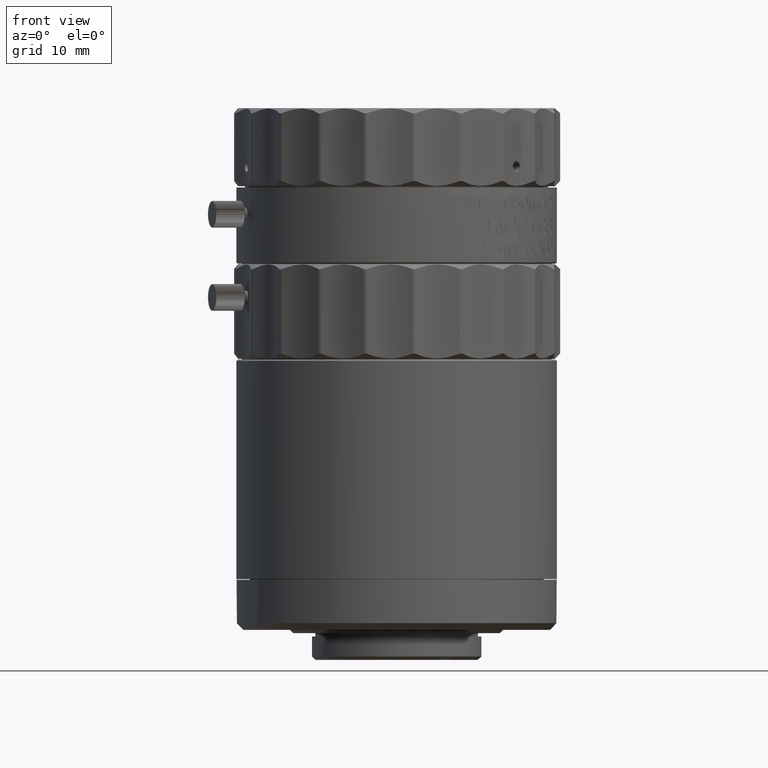
[diagram: clean part render]
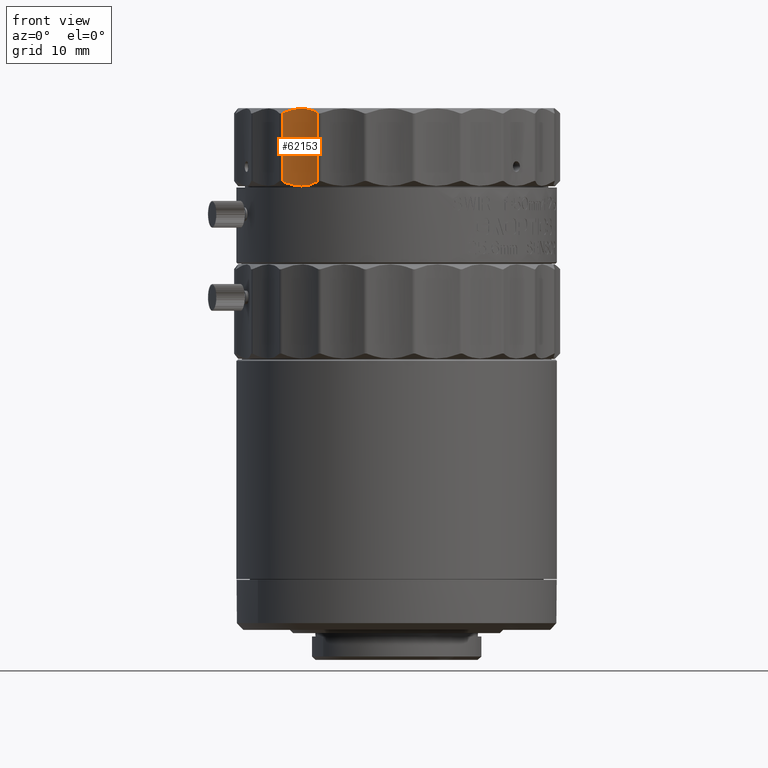
[diagram: same view with one face highlighted and labeled with its STEP entity id]
A machine part, front view. The second image highlights one B-rep face of the part: STEP entity #62153.
In plain terms, the highlighted cylindrical surface (partial cylindrical patch) has radius 12 mm, axis along (0, 0, -1).
Its self-contained STEP definition (entity closure, byte-faithful):
#778 = EDGE_CURVE ( 'NONE', #52822, #87277, #22049, .T. ) ;
#3986 = CARTESIAN_POINT ( 'NONE',  ( 10.85589953866780100, 130.8712827436203554, 11.72033998260007692 ) ) ;
#4477 = B_SPLINE_CURVE_WITH_KNOTS ( 'NONE', 3,
 ( #72812, #57101, #14555, #64428, #48721, #81738, #82832, #13448, #46533, #37593, #71736, #80655, #12912, #3986, #73363, #21882, #98530, #90144 ),
 .UNSPECIFIED., .F., .F.,
 ( 4, 2, 2, 2, 2, 2, 2, 2, 4 ),
 ( 0.000000000000000000, 0.1249999999999951705, 0.1874999999999928668, 0.2499999999999905631, 0.4999999999999748534, 0.6249999999999708011, 0.6874999999999727995, 0.7499999999999747979, 1.000000000000000000 ),
 .UNSPECIFIED. ) ;
#6657 = CARTESIAN_POINT ( 'NONE',  ( 11.25318383352952623, 130.4791059473226937, 0.4745354709357253453 ) ) ;
#6744 = B_SPLINE_CURVE_WITH_KNOTS ( 'NONE', 3,
 ( #74963, #108472, #41381, #66590, #49770, #6657, #75526, #40270, #74406, #110123, #101774, #25138, #23498, #100685, #107928, #109029, #91197, #92844 ),
 .UNSPECIFIED., .F., .F.,
 ( 4, 2, 2, 2, 2, 2, 2, 2, 4 ),
 ( 0.000000000000000000, 0.1249999999999944211, 0.1874999999999916178, 0.2499999999999888423, 0.4999999999999927836, 0.6249999999999944489, 0.6874999999999953371, 0.7499999999999960032, 1.000000000000000000 ),
 .UNSPECIFIED. ) ;
#12912 = CARTESIAN_POINT ( 'NONE',  ( 10.65148040333285628, 131.0601573061279055, 11.76385411074193676 ) ) ;
#13448 = CARTESIAN_POINT ( 'NONE',  ( 8.900104983703039707, 132.3812608486865372, 11.78197888949990180 ) ) ;
#14418 = B_SPLINE_CURVE_WITH_KNOTS ( 'NONE', 3,
 ( #18319, #44059, #78767, #27831 ),
 .UNSPECIFIED., .F., .F.,
 ( 4, 4 ),
 ( 0.000000000000000000, 1.000000000000000000 ),
 .UNSPECIFIED. ) ;
#14555 = CARTESIAN_POINT ( 'NONE',  ( 7.421253827728339303, 133.1422010511689678, 11.37307826412433620 ) ) ;
#18319 = CARTESIAN_POINT ( 'NONE',  ( 12.14635171946665970, 129.4455741795787844, 11.16933738949530053 ) ) ;
#20670 = FACE_OUTER_BOUND ( 'NONE', #103343, .T. ) ;
#21882 = CARTESIAN_POINT ( 'NONE',  ( 11.45332290295791111, 130.2846567679672205, 11.55136217950585298 ) ) ;
#22049 = B_SPLINE_CURVE_WITH_KNOTS ( 'NONE', 3,
 ( #80185, #108032, #46073, #29810 ),
 .UNSPECIFIED., .F., .F.,
 ( 4, 4 ),
 ( 0.000000000000000000, 1.000000000000000000 ),
 .UNSPECIFIED. ) ;
#22660 = ORIENTED_EDGE ( 'NONE', *, *, #778, .F. ) ;
#23123 = AXIS2_PLACEMENT_3D ( 'NONE', #87846, #54796, #62125 ) ;
#23498 = CARTESIAN_POINT ( 'NONE',  ( 8.890595650705249042, 132.3733634514769619, 0.3161458893335047371 ) ) ;
#25138 = CARTESIAN_POINT ( 'NONE',  ( 9.008421733130449027, 132.3006916984763564, 0.2980151446528672143 ) ) ;
#26648 = CARTESIAN_POINT ( 'NONE',  ( 12.14635171946665970, 129.4455741795787844, 11.16933738949530053 ) ) ;
#27831 = CARTESIAN_POINT ( 'NONE',  ( 12.14635171946824066, 129.4455741795765960, 0.9106626104832049595 ) ) ;
#29270 = CARTESIAN_POINT ( 'NONE',  ( 6.916721446607659196, 133.3456491858921993, 0.9106626104703609004 ) ) ;
#29810 = CARTESIAN_POINT ( 'NONE',  ( 6.916721446613509627, 133.3456491858899824, 11.16933738951147959 ) ) ;
#33000 = ORIENTED_EDGE ( 'NONE', *, *, #42800, .F. ) ;
#36487 = EDGE_CURVE ( 'NONE', #109115, #52822, #6744, .T. ) ;
#37593 = CARTESIAN_POINT ( 'NONE',  ( 10.02119930707376305, 131.5940892565542129, 11.84000170444184796 ) ) ;
#37745 = CARTESIAN_POINT ( 'NONE',  ( 12.14635171946824066, 129.4455741795765960, 0.9106626104832049595 ) ) ;
#40270 = CARTESIAN_POINT ( 'NONE',  ( 10.65633762012064700, 131.0715240886037236, 0.2980211103736635780 ) ) ;
#41381 = CARTESIAN_POINT ( 'NONE',  ( 11.80745591245268322, 129.8711252330642765, 0.7069217358564239273 ) ) ;
#42800 = EDGE_CURVE ( 'NONE', #56497, #109115, #14418, .T. ) ;
#44059 = CARTESIAN_POINT ( 'NONE',  ( 12.14635171947212733, 129.4455741795868278, 7.749779129828491264 ) ) ;
#46073 = CARTESIAN_POINT ( 'NONE',  ( 6.916721446629147785, 133.3456491859083997, 7.749779129838741731 ) ) ;
#46533 = CARTESIAN_POINT ( 'NONE',  ( 9.362567463043212967, 132.0852674280712904, 11.83999659112582492 ) ) ;
#48721 = CARTESIAN_POINT ( 'NONE',  ( 7.916451313815018764, 132.9090358427914680, 11.53543106869965662 ) ) ;
#49770 = CARTESIAN_POINT ( 'NONE',  ( 11.44273974246953252, 130.2792534971958105, 0.5445689312845855001 ) ) ;
#52822 = VERTEX_POINT ( 'NONE', #29270 ) ;
#54796 = DIRECTION ( 'NONE',  ( 0.000000000000000000, 0.000000000000000000, -1.000000000000000000 ) ) ;
#56497 = VERTEX_POINT ( 'NONE', #26648 ) ;
#57101 = CARTESIAN_POINT ( 'NONE',  ( 7.170757104142646554, 133.2484317239748464, 11.27757522220547770 ) ) ;
#58401 = EDGE_CURVE ( 'NONE', #87277, #56497, #4477, .T. ) ;
#61745 = ORIENTED_EDGE ( 'NONE', *, *, #58401, .F. ) ;
#62125 = DIRECTION ( 'NONE',  ( 0.3574138779526427334, 0.9339461011465562956, 0.000000000000000000 ) ) ;
#62153 = ADVANCED_FACE ( 'NONE', ( #20670 ), #95120, .F. ) ;
#64428 = CARTESIAN_POINT ( 'NONE',  ( 7.793133655912723334, 132.9690525982735494, 11.49723064082769142 ) ) ;
#65391 = ORIENTED_EDGE ( 'NONE', *, *, #36487, .F. ) ;
#66590 = CARTESIAN_POINT ( 'NONE',  ( 11.53543518174704374, 130.1781752541048434, 0.5827693591553183561 ) ) ;
#71736 = CARTESIAN_POINT ( 'NONE',  ( 10.23487077155899350, 131.4225471485192429, 11.82549813135367955 ) ) ;
#72812 = CARTESIAN_POINT ( 'NONE',  ( 6.916721446613509627, 133.3456491858899824, 11.16933738951147959 ) ) ;
#73363 = CARTESIAN_POINT ( 'NONE',  ( 10.95831646745352828, 130.7733732233136266, 11.69459307551488791 ) ) ;
#74406 = CARTESIAN_POINT ( 'NONE',  ( 10.24073917966418890, 131.4303577339374840, 0.2400034087489809342 ) ) ;
#74963 = CARTESIAN_POINT ( 'NONE',  ( 12.14635171946824066, 129.4455741795765960, 0.9106626104832049595 ) ) ;
#75526 = CARTESIAN_POINT ( 'NONE',  ( 11.15756278816271418, 130.5766563931542237, 0.4430611020013008328 ) ) ;
#78767 = CARTESIAN_POINT ( 'NONE',  ( 12.14635171947138836, 129.4455741795877657, 4.330220870166180624 ) ) ;
#80185 = CARTESIAN_POINT ( 'NONE',  ( 6.916721446607659196, 133.3456491858921993, 0.9106626104703609004 ) ) ;
#80655 = CARTESIAN_POINT ( 'NONE',  ( 10.54822184758822345, 131.1523627292695267, 11.78198485543115659 ) ) ;
#81738 = CARTESIAN_POINT ( 'NONE',  ( 8.162066202081481592, 132.7843531611603112, 11.60546452905193604 ) ) ;
#82832 = CARTESIAN_POINT ( 'NONE',  ( 8.282837003640375784, 132.7205261501584346, 11.63693889802095605 ) ) ;
#87277 = VERTEX_POINT ( 'NONE', #103316 ) ;
#87846 = CARTESIAN_POINT ( 'NONE',  ( 2.627754911163830087, 122.1382959721000105, 6.040000015993129523 ) ) ;
#90144 = CARTESIAN_POINT ( 'NONE',  ( 12.14635171946665970, 129.4455741795787844, 11.16933738949530053 ) ) ;
#91197 = CARTESIAN_POINT ( 'NONE',  ( 7.424822386599020163, 133.1512029248572162, 0.6941743226783123610 ) ) ;
#92844 = CARTESIAN_POINT ( 'NONE',  ( 6.916721446607659196, 133.3456491858921993, 0.9106626104703609004 ) ) ;
#95120 = CYLINDRICAL_SURFACE ( 'NONE', #23123, 12.00000000001270983 ) ;
#98530 = CARTESIAN_POINT ( 'NONE',  ( 11.81506610239505228, 129.8771129998680465, 11.38582567723159755 ) ) ;
#100685 = CARTESIAN_POINT ( 'NONE',  ( 8.651263535220385492, 132.5154230224007108, 0.3596600174426327068 ) ) ;
#101774 = CARTESIAN_POINT ( 'NONE',  ( 9.356755021678862860, 132.0774151046652491, 0.2545018687327335605 ) ) ;
#103316 = CARTESIAN_POINT ( 'NONE',  ( 6.916721446613509627, 133.3456491858899824, 11.16933738951147959 ) ) ;
#103343 = EDGE_LOOP ( 'NONE', ( #33000, #61745, #22660, #65391 ) ) ;
#107928 = CARTESIAN_POINT ( 'NONE',  ( 8.528210316687371062, 132.5856612373127916, 0.3854069244888834178 ) ) ;
#108032 = CARTESIAN_POINT ( 'NONE',  ( 6.916721446636007187, 133.3456491859058133, 4.330220870166003877 ) ) ;
#108472 = CARTESIAN_POINT ( 'NONE',  ( 11.98071856871420238, 129.6613310093069913, 0.8024247777757047562 ) ) ;
#109029 = CARTESIAN_POINT ( 'NONE',  ( 7.918611731483558458, 132.9207205000853662, 0.5286378204121646718 ) ) ;
#109115 = VERTEX_POINT ( 'NONE', #37745 ) ;
#110123 = CARTESIAN_POINT ( 'NONE',  ( 9.582113448760777530, 131.9215441036224377, 0.2399982956150163715 ) ) ;